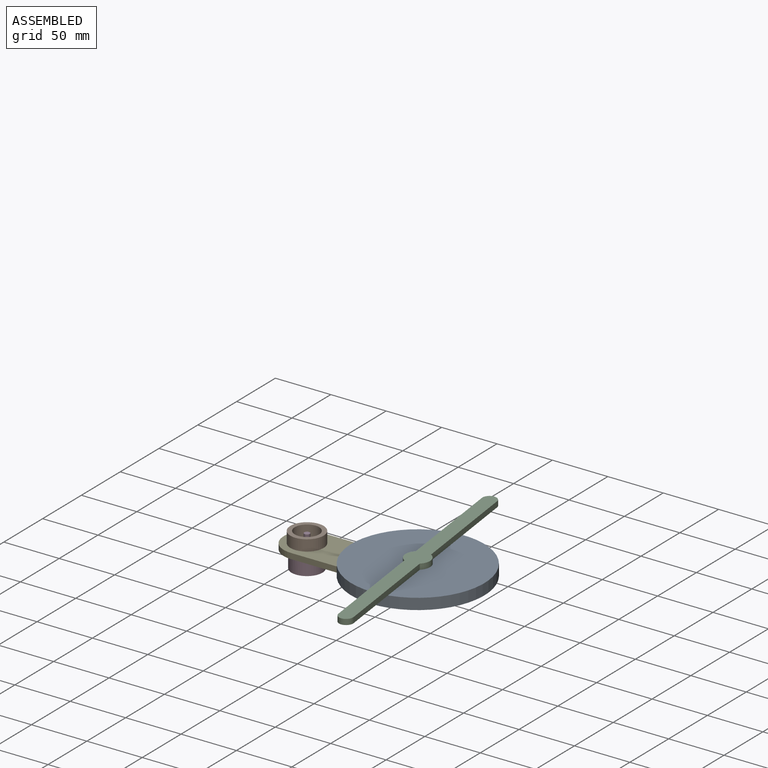
[diagram: assembled view]
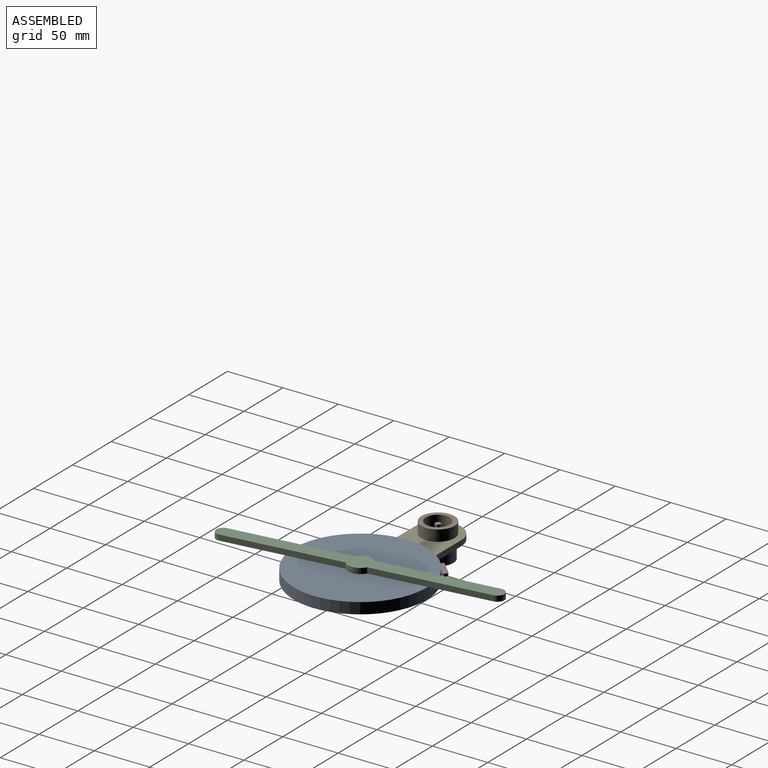
[diagram: assembled view, second angle]
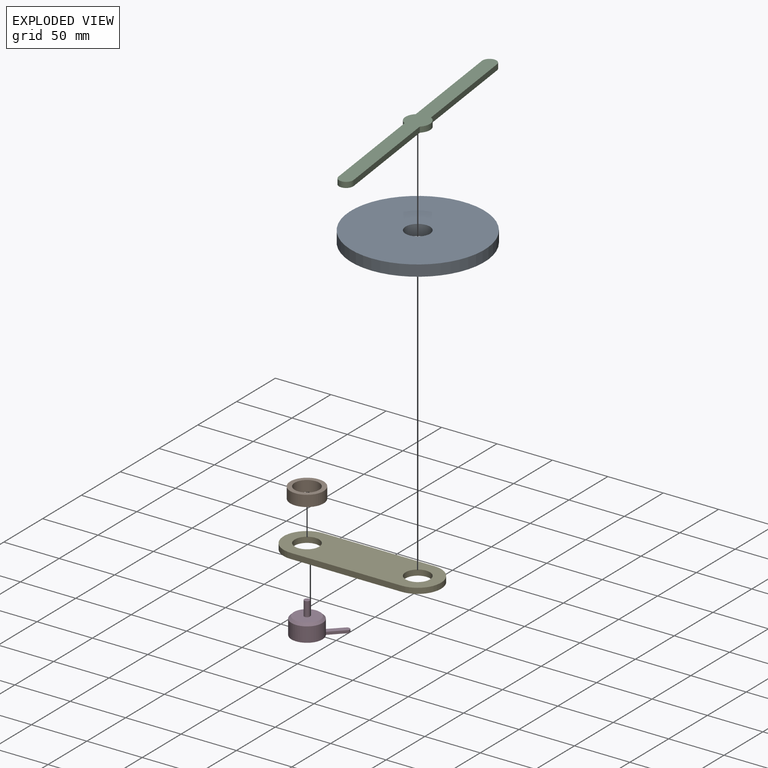
[diagram: exploded view]
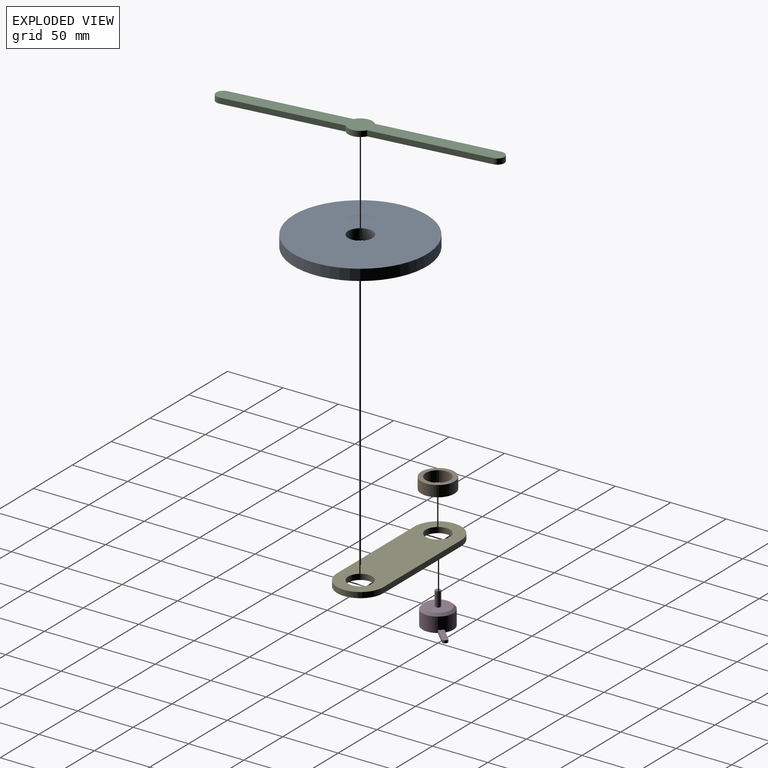
[diagram: exploded view, second angle]
ASSEMBLY  parts=5 mates=4
PART A: 4 faces, bbox 120x120x10 mm
  f0: cylinder r=60mm len=120mm, axis (0,0,-1), area 3769.9mm2, adj f2,f3
  f1: cylinder r=11mm len=22mm, axis (0,0,-1), area 691.2mm2, adj f2,f3
  f2: plane 120x120mm, normal (0,0,1), area 10929.6mm2, adj f0,f1
  f3: plane 120x120mm, normal (0,0,-1), area 10929.6mm2, adj f0,f1
PART B: 4 faces, bbox 30x30x10 mm
  f0: cylinder r=11mm len=22mm, axis (0,0,-1), area 691.2mm2, adj f2,f3
  f1: cylinder r=15mm len=30mm, axis (0,0,-1), area 942.5mm2, adj f2,f3
  f2: plane 30x30mm, normal (0,0,1), area 326.7mm2, adj f0,f1
  f3: plane 30x30mm, normal (0,0,-1), area 326.7mm2, adj f0,f1
PART C: 10 faces, bbox 241.3x22x5 mm
  f0: plane 105.32x5mm, normal (0,1,0), area 526.6mm2, adj f1,f7,f8,f9
  f1: cylinder r=6.35mm len=12.7mm, axis (0,0,-1), area 99.7mm2, adj f0,f2,f8,f9
  f2: plane 105.32x5mm, normal (0,-1,0), area 526.6mm2, adj f1,f3,f8,f9
  f3: cylinder r=11mm len=17.96mm, axis (0,0,-1), area 105.1mm2, adj f2,f4,f8,f9
  f4: plane 105.32x5mm, normal (0,-1,0), area 526.6mm2, adj f3,f5,f8,f9
  f5: cylinder r=6.35mm len=12.7mm, axis (0,0,-1), area 99.7mm2, adj f4,f6,f8,f9
  f6: plane 105.32x5mm, normal (0,1,0), area 526.6mm2, adj f5,f7,f8,f9
  f7: cylinder r=11mm len=17.96mm, axis (0,0,-1), area 105.1mm2, adj f0,f6,f8,f9
  f8: plane 241.3x22mm, normal (0,0,1), area 3147mm2, adj f0,f1,f2,f3,f4,f5,f6,f7
  f9: plane 241.3x22mm, normal (0,0,-1), area 3147mm2, adj f0,f1,f2,f3,f4,f5,f6,f7
PART D: 18 faces, bbox 37.7x37.7x28.6 mm
  f0: plane 37.66x37.66mm, normal (0,0,-1), area 673.5mm2, adj f1,f3,f4,f5,f7,f9,f11,f13
  f1: cylinder r=13.95mm len=27.9mm, axis (0,0,-1), area 1160.1mm2, adj f0,f2,f3,f4,f16
  f2: plane 15.78x15.78mm, normal (0,0,1), area 90.4mm2, adj f1,f3,f4,f5
  f3: plane 11.51x11.51mm, normal (0.71,-0.71,0), area 40.7mm2, adj f0,f1,f2,f5
  f4: plane 11.51x11.51mm, normal (-0.71,0.71,0), area 40.7mm2, adj f0,f1,f2,f5
  f5: cylinder r=2.5mm len=4.27mm, axis (0,0,1), area 19.6mm2, adj f0,f2,f3,f4
  f6: plane 3x3mm, normal (0,0,-1), area 7.1mm2, adj f7
  f7: cylinder r=1.5mm len=10mm, axis (0,0,1), area 94.2mm2, adj f0,f6
  f8: plane 3x3mm, normal (0,0,-1), area 7.1mm2, adj f9
  f9: cylinder r=1.5mm len=10mm, axis (0,0,1), area 94.2mm2, adj f0,f8
  f10: plane 3x3mm, normal (0,0,-1), area 7.1mm2, adj f11
  f11: cylinder r=1.5mm len=10mm, axis (0,0,1), area 94.2mm2, adj f0,f10
  f12: plane 3x3mm, normal (0,0,-1), area 7.1mm2, adj f13
  f13: cylinder r=1.5mm len=10mm, axis (0,0,1), area 94.2mm2, adj f0,f12
  f14: cylinder r=2.5mm len=13.1mm, axis (0,0,-1), area 205.8mm2, adj f15,f17
  f15: plane 23.66x23.66mm, normal (0,0,1), area 419.9mm2, adj f14,f16
  f16: cone r=13.95mm half-angle=45deg, axis (0,0,-1), area 243mm2, adj f1,f15
  f17: plane 5x5mm, normal (0,0,1), area 19.6mm2, adj f14
PART E: 8 faces, bbox 142x42x5 mm
  f0: plane 100x5mm, normal (0,1,0), area 500mm2, adj f1,f4,f6,f7
  f1: cylinder r=21mm len=42mm, axis (0,0,-1), area 329.9mm2, adj f0,f2,f6,f7
  f2: plane 100x5mm, normal (0,-1,0), area 500mm2, adj f1,f4,f6,f7
  f3: cylinder r=11mm len=22mm, axis (0,0,-1), area 345.6mm2, adj f6,f7
  f4: cylinder r=21mm len=42mm, axis (0,0,-1), area 329.9mm2, adj f0,f2,f6,f7
  f5: cylinder r=11mm len=22mm, axis (0,0,-1), area 345.6mm2, adj f6,f7
  f6: plane 142x42mm, normal (0,0,1), area 4825.2mm2, adj f0,f1,f2,f3,f4,f5
  f7: plane 142x42mm, normal (0,0,-1), area 4825.2mm2, adj f0,f1,f2,f3,f4,f5
PLACE A rot(axis=(0,0,-1),82.6deg) t=(157.41,-16.14,0)mm
PLACE B rot(axis=(0,0,-1),29.5deg) t=(37.36,-43.73,0)mm
PLACE C rot(axis=(0.75,-0.66,0),180deg) t=(72.15,-33.95,20)mm
PLACE D t=(-17.71,-112.36,-15.5)mm
PLACE E t=(-3.51,-25.52,0)mm fixed
MATE fastened C.f3 <-> A.f0  axis (0,0,-1) through (82.29,-112.36,15)mm
MATE revolute A.f0 <-> E.f3  axis (0,0,-1) through (82.29,-112.36,5)mm
MATE revolute B.f0 <-> E.f1  axis (0,0,-1) through (-17.71,-112.36,5)mm
MATE fastened D.f1 <-> E.f1  axis (0,0,1) through (-17.71,-112.36,0)mm
